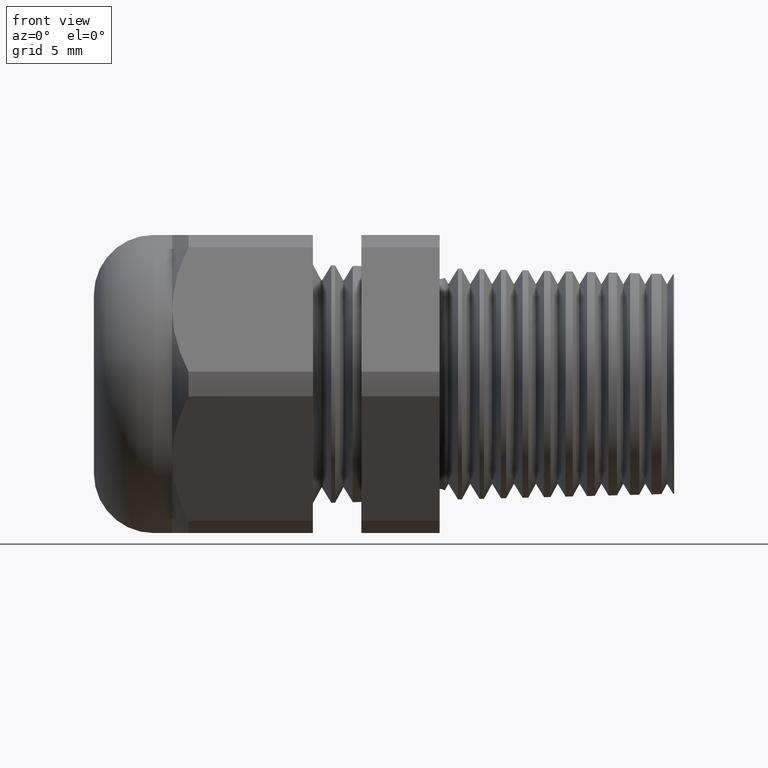
[diagram: clean part render]
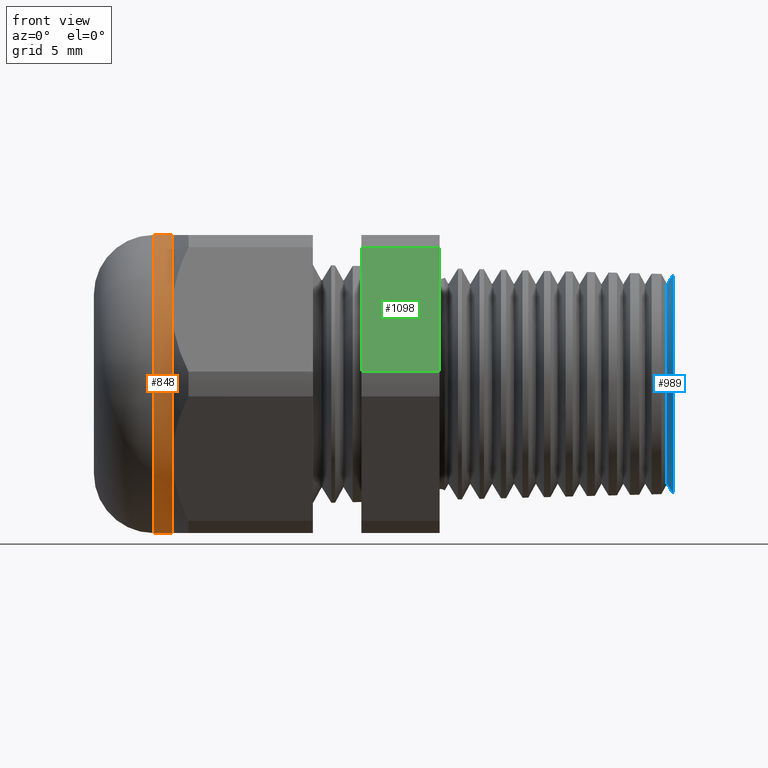
[diagram: same view with three faces highlighted in distinct colors, each labeled with its STEP entity id]
A machine part, front view with three faces highlighted in distinct colors.
Their STEP definitions:

[orange] entity #848 — the highlighted cylindrical surface (partial cylindrical patch) has radius 9.525 mm, axis along (1, 0, 0).
#72 = VERTEX_POINT ( 'NONE', #1423 ) ;
#196 = VERTEX_POINT ( 'NONE', #1624 ) ;
#197 = VERTEX_POINT ( 'NONE', #1623 ) ;
#461 = EDGE_CURVE ( 'NONE', #196, #72, #2184, .T. ) ;
#476 = EDGE_CURVE ( 'NONE', #197, #477, #2218, .T. ) ;
#477 = VERTEX_POINT ( 'NONE', #2214 ) ;
#613 = VERTEX_POINT ( 'NONE', #2439 ) ;
#644 = VERTEX_POINT ( 'NONE', #2555 ) ;
#773 = EDGE_LOOP ( 'NONE', ( #774, #775, #777, #778, #780, #782 ) ) ;
#774 = ORIENTED_EDGE ( 'NONE', *, *, #476, .F. ) ;
#775 = ORIENTED_EDGE ( 'NONE', *, *, #776, .T. ) ;
#776 = EDGE_CURVE ( 'NONE', #197, #196, #2817, .T. ) ;
#777 = ORIENTED_EDGE ( 'NONE', *, *, #461, .T. ) ;
#778 = ORIENTED_EDGE ( 'NONE', *, *, #779, .F. ) ;
#779 = EDGE_CURVE ( 'NONE', #644, #72, #2813, .T. ) ;
#780 = ORIENTED_EDGE ( 'NONE', *, *, #781, .F. ) ;
#781 = EDGE_CURVE ( 'NONE', #613, #644, #2808, .T. ) ;
#782 = ORIENTED_EDGE ( 'NONE', *, *, #783, .F. ) ;
#783 = EDGE_CURVE ( 'NONE', #477, #613, #2803, .T. ) ;
#848 = ADVANCED_FACE ( 'NONE', ( #2944 ), #2943, .T. ) ;
#1423 = CARTESIAN_POINT ( 'NONE',  ( -0.9831496062992126600, 0.0000000000000000000, -0.3750000000000001100 ) ) ;
#1623 = CARTESIAN_POINT ( 'NONE',  ( -1.030000000000000000, 4.592425496802573600E-017, 0.3749999999999999400 ) ) ;
#1624 = CARTESIAN_POINT ( 'NONE',  ( -1.030000000000000000, 0.0000000000000000000, -0.3749999999999999400 ) ) ;
#2177 = DIRECTION ( 'NONE',  ( 1.000000000000000000, 0.0000000000000000000, 0.0000000000000000000 ) ) ;
#2178 = VECTOR ( 'NONE', #2177, 39.37007874015748100 ) ;
#2179 = CARTESIAN_POINT ( 'NONE',  ( 0.0000000000000000000, 0.0000000000000000000, -0.3749999999999999400 ) ) ;
#2184 = LINE ( 'NONE', #2179, #2178 ) ;
#2214 = CARTESIAN_POINT ( 'NONE',  ( -0.9831496062992126600, 0.0000000000000000000, 0.3749999999999999400 ) ) ;
#2215 = DIRECTION ( 'NONE',  ( 1.000000000000000000, 0.0000000000000000000, 0.0000000000000000000 ) ) ;
#2216 = VECTOR ( 'NONE', #2215, 39.37007874015748100 ) ;
#2217 = CARTESIAN_POINT ( 'NONE',  ( 0.0000000000000000000, 4.592425496802573600E-017, 0.3749999999999999400 ) ) ;
#2218 = LINE ( 'NONE', #2217, #2216 ) ;
#2439 = CARTESIAN_POINT ( 'NONE',  ( -0.9831496062992126600, -0.3247595264191646700, 0.1874999999999999700 ) ) ;
#2555 = CARTESIAN_POINT ( 'NONE',  ( -0.9831496062992126600, -0.3247595264191643300, -0.1874999999999999700 ) ) ;
#2799 = DIRECTION ( 'NONE',  ( 0.0000000000000000000, 0.0000000000000000000, -1.000000000000000000 ) ) ;
#2800 = DIRECTION ( 'NONE',  ( 1.000000000000000000, 0.0000000000000000000, 0.0000000000000000000 ) ) ;
#2801 = CARTESIAN_POINT ( 'NONE',  ( -0.9831496062992126600, 0.0000000000000000000, 0.0000000000000000000 ) ) ;
#2802 = AXIS2_PLACEMENT_3D ( 'NONE', #2801, #2800, #2799 ) ;
#2803 = CIRCLE ( 'NONE', #2802, 0.3749999999999999400 ) ;
#2804 = DIRECTION ( 'NONE',  ( 0.0000000000000000000, 0.0000000000000000000, -1.000000000000000000 ) ) ;
#2805 = DIRECTION ( 'NONE',  ( 1.000000000000000000, 0.0000000000000000000, 0.0000000000000000000 ) ) ;
#2806 = CARTESIAN_POINT ( 'NONE',  ( -0.9831496062992126600, 0.0000000000000000000, 0.0000000000000000000 ) ) ;
#2807 = AXIS2_PLACEMENT_3D ( 'NONE', #2806, #2805, #2804 ) ;
#2808 = CIRCLE ( 'NONE', #2807, 0.3749999999999999400 ) ;
#2809 = DIRECTION ( 'NONE',  ( 0.0000000000000000000, 0.0000000000000000000, -1.000000000000000000 ) ) ;
#2810 = DIRECTION ( 'NONE',  ( 1.000000000000000000, 0.0000000000000000000, 0.0000000000000000000 ) ) ;
#2811 = CARTESIAN_POINT ( 'NONE',  ( -0.9831496062992126600, 0.0000000000000000000, 0.0000000000000000000 ) ) ;
#2812 = AXIS2_PLACEMENT_3D ( 'NONE', #2811, #2810, #2809 ) ;
#2813 = CIRCLE ( 'NONE', #2812, 0.3749999999999999400 ) ;
#2814 = DIRECTION ( 'NONE',  ( 0.0000000000000000000, 0.0000000000000000000, 1.000000000000000000 ) ) ;
#2815 = DIRECTION ( 'NONE',  ( 1.000000000000000000, 0.0000000000000000000, 0.0000000000000000000 ) ) ;
#2816 = AXIS2_PLACEMENT_3D ( 'NONE', #2822, #2815, #2814 ) ;
#2817 = CIRCLE ( 'NONE', #2816, 0.3749999999999999400 ) ;
#2822 = CARTESIAN_POINT ( 'NONE',  ( -1.030000000000000000, 0.0000000000000000000, 0.0000000000000000000 ) ) ;
#2938 = DIRECTION ( 'NONE',  ( 0.0000000000000000000, 0.0000000000000000000, -1.000000000000000000 ) ) ;
#2939 = DIRECTION ( 'NONE',  ( 1.000000000000000000, 0.0000000000000000000, 0.0000000000000000000 ) ) ;
#2940 = CARTESIAN_POINT ( 'NONE',  ( 0.0000000000000000000, 0.0000000000000000000, 0.0000000000000000000 ) ) ;
#2941 = AXIS2_PLACEMENT_3D ( 'NONE', #2940, #2939, #2938 ) ;
#2943 = CYLINDRICAL_SURFACE ( 'NONE', #2941, 0.3749999999999999400 ) ;
#2944 = FACE_OUTER_BOUND ( 'NONE', #773, .T. ) ;

[blue] entity #989 — the highlighted conical surface has half-angle 58.5 deg.
#251 = VERTEX_POINT ( 'NONE', #1717 ) ;
#253 = EDGE_CURVE ( 'NONE', #251, #254, #1716, .T. ) ;
#254 = VERTEX_POINT ( 'NONE', #1774 ) ;
#257 = VERTEX_POINT ( 'NONE', #1768 ) ;
#259 = VERTEX_POINT ( 'NONE', #1762 ) ;
#260 = EDGE_CURVE ( 'NONE', #259, #257, #1761, .T. ) ;
#796 = EDGE_CURVE ( 'NONE', #257, #254, #2834, .T. ) ;
#970 = ORIENTED_EDGE ( 'NONE', *, *, #796, .T. ) ;
#986 = EDGE_CURVE ( 'NONE', #251, #259, #3152, .T. ) ;
#989 = ADVANCED_FACE ( 'NONE', ( #3148 ), #3147, .T. ) ;
#990 = EDGE_LOOP ( 'NONE', ( #991, #992, #993, #970 ) ) ;
#991 = ORIENTED_EDGE ( 'NONE', *, *, #253, .F. ) ;
#992 = ORIENTED_EDGE ( 'NONE', *, *, #986, .T. ) ;
#993 = ORIENTED_EDGE ( 'NONE', *, *, #260, .T. ) ;
#1716 = LINE ( 'NONE', #1777, #1776 ) ;
#1717 = CARTESIAN_POINT ( 'NONE',  ( 0.2620390190945657800, 0.0000000000000000000, 0.2510606096265775600 ) ) ;
#1758 = DIRECTION ( 'NONE',  ( 0.5224985647159462500, 0.0000000000000000000, -0.8526401643540938400 ) ) ;
#1759 = VECTOR ( 'NONE', #1758, 39.37007874015748100 ) ;
#1760 = CARTESIAN_POINT ( 'NONE',  ( 0.2620390190945657800, 0.0000000000000000000, -0.2510606096265775600 ) ) ;
#1761 = LINE ( 'NONE', #1760, #1759 ) ;
#1762 = CARTESIAN_POINT ( 'NONE',  ( 0.2620390190945657800, 3.233692514135973100E-017, -0.2510606096265775600 ) ) ;
#1768 = CARTESIAN_POINT ( 'NONE',  ( 0.2774858670443504600, 3.383302008370905500E-017, -0.2762675745142592600 ) ) ;
#1774 = CARTESIAN_POINT ( 'NONE',  ( 0.2774858670443504600, 0.0000000000000000000, 0.2762675745142592600 ) ) ;
#1775 = DIRECTION ( 'NONE',  ( 0.5224985647159462500, 1.044183048100714200E-016, 0.8526401643540938400 ) ) ;
#1776 = VECTOR ( 'NONE', #1775, 39.37007874015748100 ) ;
#1777 = CARTESIAN_POINT ( 'NONE',  ( 0.2620390190945657800, 3.074605719711714000E-017, 0.2510606096265775600 ) ) ;
#2830 = DIRECTION ( 'NONE',  ( 0.0000000000000000000, 0.0000000000000000000, -1.000000000000000000 ) ) ;
#2831 = DIRECTION ( 'NONE',  ( -1.000000000000000000, 0.0000000000000000000, 0.0000000000000000000 ) ) ;
#2832 = CARTESIAN_POINT ( 'NONE',  ( 0.2774858670443504600, 0.0000000000000000000, 0.0000000000000000000 ) ) ;
#2833 = AXIS2_PLACEMENT_3D ( 'NONE', #2832, #2831, #2830 ) ;
#2834 = CIRCLE ( 'NONE', #2833, 0.2762675745142592600 ) ;
#3091 = CARTESIAN_POINT ( 'NONE',  ( 0.2620390190945657800, 0.0000000000000000000, 0.0000000000000000000 ) ) ;
#3142 = DIRECTION ( 'NONE',  ( 0.0000000000000000000, 0.0000000000000000000, -1.000000000000000000 ) ) ;
#3143 = DIRECTION ( 'NONE',  ( 1.000000000000000000, 0.0000000000000000000, 0.0000000000000000000 ) ) ;
#3144 = CARTESIAN_POINT ( 'NONE',  ( 0.2620390190945657800, 0.0000000000000000000, 0.0000000000000000000 ) ) ;
#3145 = AXIS2_PLACEMENT_3D ( 'NONE', #3144, #3143, #3142 ) ;
#3147 = CONICAL_SURFACE ( 'NONE', #3145, 0.2510606096265775600, 1.021017612416685900 ) ;
#3148 = FACE_OUTER_BOUND ( 'NONE', #990, .T. ) ;
#3149 = DIRECTION ( 'NONE',  ( 0.0000000000000000000, 0.0000000000000000000, -1.000000000000000000 ) ) ;
#3150 = DIRECTION ( 'NONE',  ( 1.000000000000000000, 0.0000000000000000000, 0.0000000000000000000 ) ) ;
#3151 = AXIS2_PLACEMENT_3D ( 'NONE', #3091, #3150, #3149 ) ;
#3152 = CIRCLE ( 'NONE', #3151, 0.2510606096265775600 ) ;

[green] entity #1098 — the highlighted planar face has unit normal (0, -0.866, 0.5).
#561 = VERTEX_POINT ( 'NONE', #2373 ) ;
#563 = EDGE_CURVE ( 'NONE', #561, #564, #2372, .T. ) ;
#564 = VERTEX_POINT ( 'NONE', #2368 ) ;
#1046 = VERTEX_POINT ( 'NONE', #3199 ) ;
#1048 = EDGE_CURVE ( 'NONE', #1046, #1049, #3198, .T. ) ;
#1049 = VERTEX_POINT ( 'NONE', #3194 ) ;
#1096 = EDGE_CURVE ( 'NONE', #561, #1049, #3256, .T. ) ;
#1098 = ADVANCED_FACE ( 'NONE', ( #3311 ), #3310, .T. ) ;
#1099 = EDGE_LOOP ( 'NONE', ( #1149, #1150, #1151, #1153 ) ) ;
#1149 = ORIENTED_EDGE ( 'NONE', *, *, #1096, .T. ) ;
#1150 = ORIENTED_EDGE ( 'NONE', *, *, #1048, .F. ) ;
#1151 = ORIENTED_EDGE ( 'NONE', *, *, #1152, .F. ) ;
#1152 = EDGE_CURVE ( 'NONE', #564, #1046, #3355, .T. ) ;
#1153 = ORIENTED_EDGE ( 'NONE', *, *, #563, .F. ) ;
#2368 = CARTESIAN_POINT ( 'NONE',  ( -0.3100000000000000000, -0.4150909474475088500, 0.03104138925901205400 ) ) ;
#2369 = DIRECTION ( 'NONE',  ( 0.0000000000000000000, -0.4999999999999998300, -0.8660254037844388200 ) ) ;
#2370 = VECTOR ( 'NONE', #2369, 39.37007874015748100 ) ;
#2371 = CARTESIAN_POINT ( 'NONE',  ( -0.3100000000000000000, -0.1372595264191647000, 0.5122595264191643900 ) ) ;
#2372 = LINE ( 'NONE', #2371, #2370 ) ;
#2373 = CARTESIAN_POINT ( 'NONE',  ( -0.3100000000000000000, -0.2344281053908204800, 0.3439586107409878200 ) ) ;
#3194 = CARTESIAN_POINT ( 'NONE',  ( -0.5068503937007874400, -0.2344281053908204800, 0.3439586107409878200 ) ) ;
#3195 = DIRECTION ( 'NONE',  ( 0.0000000000000000000, 0.4999999999999998300, 0.8660254037844388200 ) ) ;
#3196 = VECTOR ( 'NONE', #3195, 39.37007874015748100 ) ;
#3197 = CARTESIAN_POINT ( 'NONE',  ( -0.5068503937007874400, -0.1372595264191648300, 0.5122595264191643900 ) ) ;
#3198 = LINE ( 'NONE', #3197, #3196 ) ;
#3199 = CARTESIAN_POINT ( 'NONE',  ( -0.5068503937007874400, -0.4150909474475088500, 0.03104138925901205400 ) ) ;
#3248 = DIRECTION ( 'NONE',  ( -1.000000000000000000, 0.0000000000000000000, 0.0000000000000000000 ) ) ;
#3249 = VECTOR ( 'NONE', #3248, 39.37007874015748100 ) ;
#3250 = CARTESIAN_POINT ( 'NONE',  ( 0.2800000000000000300, -0.2344281053908204800, 0.3439586107409878200 ) ) ;
#3256 = LINE ( 'NONE', #3250, #3249 ) ;
#3306 = DIRECTION ( 'NONE',  ( 0.0000000000000000000, -0.4999999999999998300, -0.8660254037844388200 ) ) ;
#3307 = DIRECTION ( 'NONE',  ( 0.0000000000000000000, -0.8660254037844388200, 0.4999999999999998300 ) ) ;
#3308 = CARTESIAN_POINT ( 'NONE',  ( 0.2800000000000000300, -0.4150909474475088500, 0.03104138925901206400 ) ) ;
#3309 = AXIS2_PLACEMENT_3D ( 'NONE', #3308, #3307, #3306 ) ;
#3310 = PLANE ( 'NONE',  #3309 ) ;
#3311 = FACE_OUTER_BOUND ( 'NONE', #1099, .T. ) ;
#3348 = DIRECTION ( 'NONE',  ( -1.000000000000000000, 0.0000000000000000000, 0.0000000000000000000 ) ) ;
#3349 = VECTOR ( 'NONE', #3348, 39.37007874015748100 ) ;
#3350 = CARTESIAN_POINT ( 'NONE',  ( 0.2800000000000000300, -0.4150909474475088500, 0.03104138925901205400 ) ) ;
#3355 = LINE ( 'NONE', #3350, #3349 ) ;